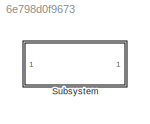
MODEL slx_6e798d0f9673
KIND model
CONFIG AbsTol = auto
CONFIG EnableMultiTasking = on
CONFIG FixedStep = 1
CONFIG MaxStep = auto
CONFIG MinStep = auto
CONFIG RelTol = 1e-3
CONFIG SampleTimeConstraint = Unconstrained
CONFIG SolverName = FixedStepDiscrete
CONFIG StartTime = 0.0
CONFIG StopTime = 200
WORKSPACE source: mxarray member
WORKSPACE V2: Simulink.Signal (value not decoded)
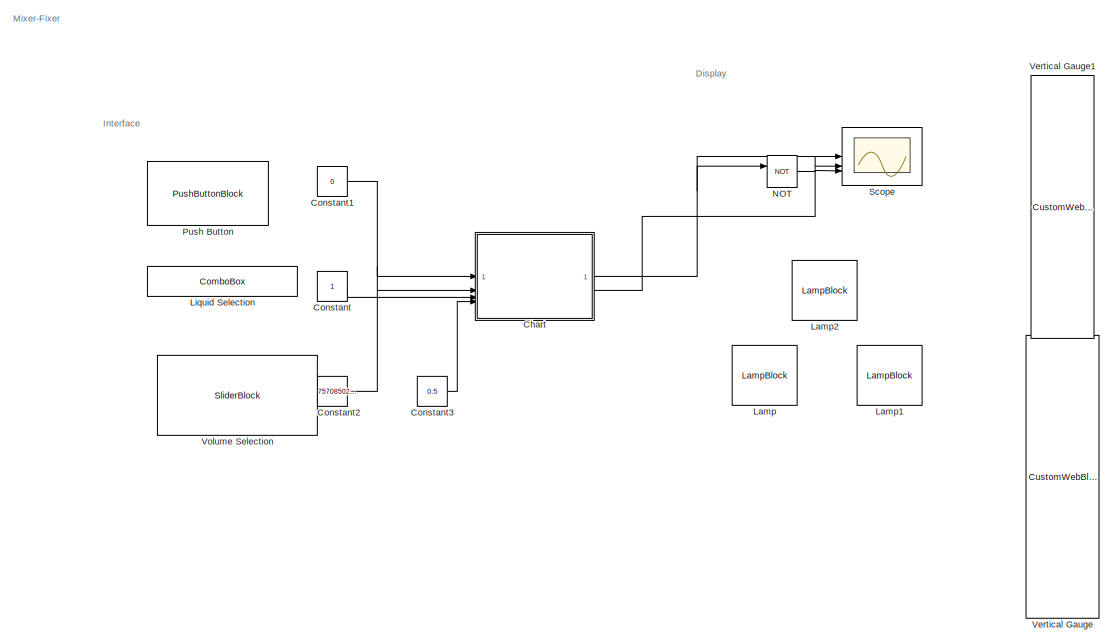
[diagram: Subsystem - part 1/2, left side, full height]
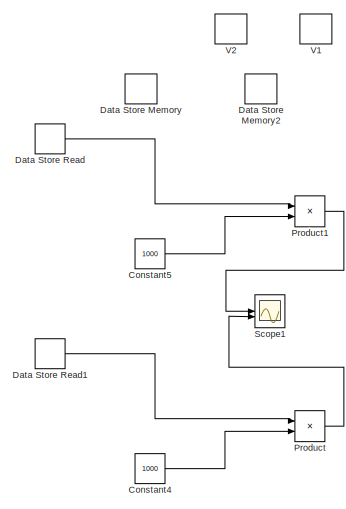
[diagram: Subsystem - part 2/2, right side, full height]
BLOCK [SubSystem] Subsystem
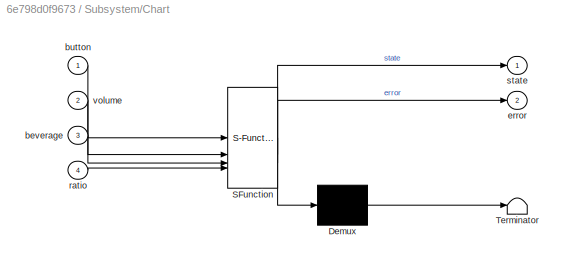
BLOCK [SubSystem] Subsystem/Chart
  ErrorFcn = Stateflow.Translate.translate
  PermitHierarchicalResolution = ExplicitOnly
  SFBlockType = Chart
  TreatAsAtomicUnit = on
BLOCK [Demux] Subsystem/Chart/ Demux 
  Outputs = 1
BLOCK [S-Function] Subsystem/Chart/ SFunction 
  EnableBusSupport = on
  FunctionName = sf_sfun
  PortCounts = [4 3]
  SFcnIsStateOwnerBlock = off
  SFunctionDeploymentMode = off
  Tag = Stateflow S-Function 3
BLOCK [Terminator] Subsystem/Chart/ Terminator 
BLOCK [Inport] Subsystem/Chart/beverage
  Port = 3
BLOCK [Inport] Subsystem/Chart/button
BLOCK [Outport] Subsystem/Chart/error
  Port = 2
BLOCK [Inport] Subsystem/Chart/ratio
  Port = 4
BLOCK [Outport] Subsystem/Chart/state
BLOCK [Inport] Subsystem/Chart/volume
  Port = 2
BLOCK [Constant] Subsystem/Constant
  SampleTime = -1
BLOCK [Constant] Subsystem/Constant1
  SampleTime = -1
  Value = 0
BLOCK [Constant] Subsystem/Constant2
  SampleTime = -1
  Value = 0.4757085020242915
BLOCK [Constant] Subsystem/Constant3
  Value = 0.5
BLOCK [Constant] Subsystem/Constant4
  Value = 1000
BLOCK [Constant] Subsystem/Constant5
  Value = 1000
BLOCK [DataStoreMemory] Subsystem/Data Store Memory
  DataStoreName = h1
  OutDataTypeStr = double
  ShowAdditionalParam = off
  SignalType = real
  WriteAfterWriteMsg = warning
BLOCK [DataStoreMemory] Subsystem/Data Store Memory2
  DataStoreName = h2
  OutDataTypeStr = double
  ShowAdditionalParam = off
  SignalType = real
  WriteAfterWriteMsg = warning
BLOCK [DataStoreRead] Subsystem/Data Store Read
  DataStoreName = V1
  IndexOptions = Index vector (dialog)
  Indices = 1
  OutputSizes = 1
BLOCK [DataStoreRead] Subsystem/Data Store Read1
  DataStoreName = V2
  IndexOptions = Index vector (dialog)
  Indices = 1
  OutputSizes = 1
BLOCK [LampBlock] Subsystem/Lamp
  LabelPosition = Hide
BLOCK [LampBlock] Subsystem/Lamp1
  LabelPosition = Hide
BLOCK [LampBlock] Subsystem/Lamp2
  LabelPosition = Hide
BLOCK [ComboBox] Subsystem/Liquid Selection
  LabelPosition = Hide
  SelectedLabel = Liquid2
BLOCK [Logic] Subsystem/NOT
  AllPortsSameDT = off
  IconShape = distinctive
  Operator = NOT
  OutDataTypeStr = boolean
BLOCK [Product] Subsystem/Product
BLOCK [Product] Subsystem/Product1
BLOCK [PushButtonBlock] Subsystem/Push Button
  OffValue = 0.000000
BLOCK [Scope] Subsystem/Scope
  Floating = off
  NumInputPorts = 3
  ScopeSpecificationString = Simulink.scopes.TimeScopeBlockCfg('CurrentConfiguration', extmgr.ConfigurationSet(extmgr.Configuration('Core','General UI',true),extmgr.Configuration('Core','Source UI',true),extmgr.Configuration('Sources','WiredSimulink',true),extmgr.Configuration('Visuals','Time Domain',true,'SerializedDisplays',{struct('MinYLimReal','-0.125','MaxYLimReal','1.125','YLabelReal','','MinYLimMag','0.00000','MaxYLimM...<+1371ch>
BLOCK [Scope] Subsystem/Scope1
  Floating = off
  NumInputPorts = 2
  ScopeSpecificationString = Simulink.scopes.TimeScopeBlockCfg('CurrentConfiguration', extmgr.ConfigurationSet(extmgr.Configuration('Core','General UI',true),extmgr.Configuration('Core','Source UI',true),extmgr.Configuration('Sources','WiredSimulink',true,'DataLoggingVariableName','ScopeData1'),extmgr.Configuration('Visuals','Time Domain',true,'SerializedDisplays',{struct('MinYLimReal','-3.65063','MaxYLimReal','3.34937','YLab...<+1377ch>
BLOCK [DataStoreMemory] Subsystem/V1
  DataStoreName = V1
  InitialValue = 0.002649375
  OutDataTypeStr = double
  ShowAdditionalParam = off
  SignalType = real
  WriteAfterWriteMsg = warning
BLOCK [DataStoreMemory] Subsystem/V2
  DataStoreName = V2
  InitialValue = 0.002649375
  OutDataTypeStr = double
  ShowAdditionalParam = off
  SignalType = real
  WriteAfterWriteMsg = warning
BLOCK [CustomWebBlock] Subsystem/Vertical Gauge
  Configuration = {"components":[{"name":"LinearScaleComponent","settings":{"bounds":{"max":2.649375,"min":0,"tickInterval":"auto"},"internalTickHeightScaleFactor":0.5,"labelColor":[255,255,200],"labelFont":{"font":"Arial","fontSize":12},"labelOffset":0.05,"labelTransparency":1,"needleImage":{"size":[21,75],"src":"data:image\/svg+xml;base64,PHN2ZyB4bWxucz0iaHR0cDovL3d3dy53My5vcmcvMjAwMC9zdmciIHhtbG5zOnhsaW5rPSJodHR...<+4605ch>
  LabelPosition = Hide
  ShowInitialText = on
BLOCK [CustomWebBlock] Subsystem/Vertical Gauge1
  Configuration = {"components":[{"name":"LinearScaleComponent","settings":{"bounds":{"max":2.649375,"min":0,"tickInterval":"auto"},"internalTickHeightScaleFactor":0.5,"labelColor":[255,255,200],"labelFont":{"font":"Arial","fontSize":12},"labelOffset":0.05,"labelTransparency":1,"needleImage":{"size":[21,75],"src":"data:image\/svg+xml;base64,PHN2ZyB4bWxucz0iaHR0cDovL3d3dy53My5vcmcvMjAwMC9zdmciIHhtbG5zOnhsaW5rPSJodHR...<+4605ch>
  LabelPosition = Hide
  ShowInitialText = on
BLOCK [SliderBlock] Subsystem/Volume Selection
  LabelPosition = Hide
  ScaleMax = 1
  TickInterval = 0.2
ANNOTATION Subsystem: Display
ANNOTATION Subsystem: Interface
ANNOTATION Subsystem: Mixer-Fixer
NET Subsystem/Chart:1 -> Subsystem/NOT:1, Subsystem/Scope:1
LINE Subsystem/Chart:2 -> Subsystem/Scope:3
LINE Subsystem/Constant1:1 -> Subsystem/Chart:1
LINE Subsystem/Constant2:1 -> Subsystem/Chart:2
LINE Subsystem/Constant3:1 -> Subsystem/Chart:4
LINE Subsystem/Constant4:1 -> Subsystem/Product:2
LINE Subsystem/Constant5:1 -> Subsystem/Product1:2
LINE Subsystem/Constant:1 -> Subsystem/Chart:3
LINE Subsystem/Data Store Read1:1 -> Subsystem/Product:1
LINE Subsystem/Data Store Read:1 -> Subsystem/Product1:1
LINE Subsystem/NOT:1 -> Subsystem/Scope:2
LINE Subsystem/Product1:1 -> Subsystem/Scope1:1
LINE Subsystem/Product:1 -> Subsystem/Scope1:2
note: NET lines group one-source signal fan-out (src -> all destinations, sorted); 1:1 wires keep LINE
CHART Subsystem/Chart states=8 transitions=8
  STATE_LABEL 'conditionChecker'
  STATE_LABEL 'SCRIPT:\nfunction conditionChecker()\n    transition = 0;\n    if (beverage == 0)\n        if (v1 > V1)\n            transition = 1;  \n        elseif (v1 < V1)  \n            transition = 0;  \n        end\n    elseif (beverage == 1) \n        if (v2 > V2)  \n            transition = 1; \n        elseif (v2 < V2)  \n            transition = 0; \n        end\n    elseif (beverage == 2) \n        if (v1*ratio > V1...<+149ch>'
  STATE_LABEL 'Idle\nentry:\nduring:\nexit:'
  STATE_LABEL 'Liquid3\nentry:mixCore(); conditionChecker();\nduring:\nexit:'
  STATE_LABEL 'mixCore'
  STATE_LABEL 'SCRIPT:\nfunction mixCore()\n\nglobal V1 V2 h1 h2;\n\nif isempty(V1) || isempty(V2)\n    V1 = 0.002649375;\n    V2 = 0.002649375;\n    h1 = 0.15;\n    h2 = 0.15;\nend\n\nif (beverage == 0)\n    v1 = volume * 0.001;\n    v2 = 0;\nelseif (beverage == 1)\n    v2 = volume * 0.001;\n    v1 = 0;\nelse\n    v1 = volume * 0.001 * ratio;\n    v2 = volume * 0.001 * (1 - ratio);\nend\n\nh1dot = (V1 - v1) / 0.0176625;\nh2dot = (V2 -...<+175ch>'
  STATE_LABEL 'Dispenser1\nentry:\nduring:t1 = t1-1;\nexit:'
  STATE_LABEL 'Fix\nentry:\nduring:\nexit:'
  STATE_LABEL 'Mix\nentry:t_mix=5;\nduring:t_mix=t_mix+1;\nexit:'
  STATE_LABEL 'Dispenser2\nentry:\nduring:t2 = t2-1;\nexit:'
CHART  states=0 transitions=0
